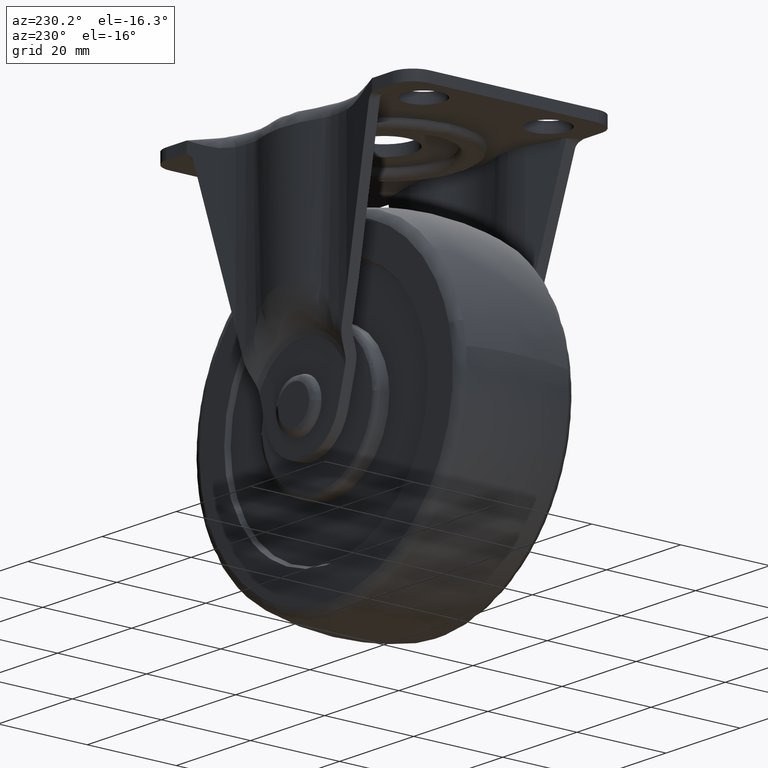
[diagram: clean part render]
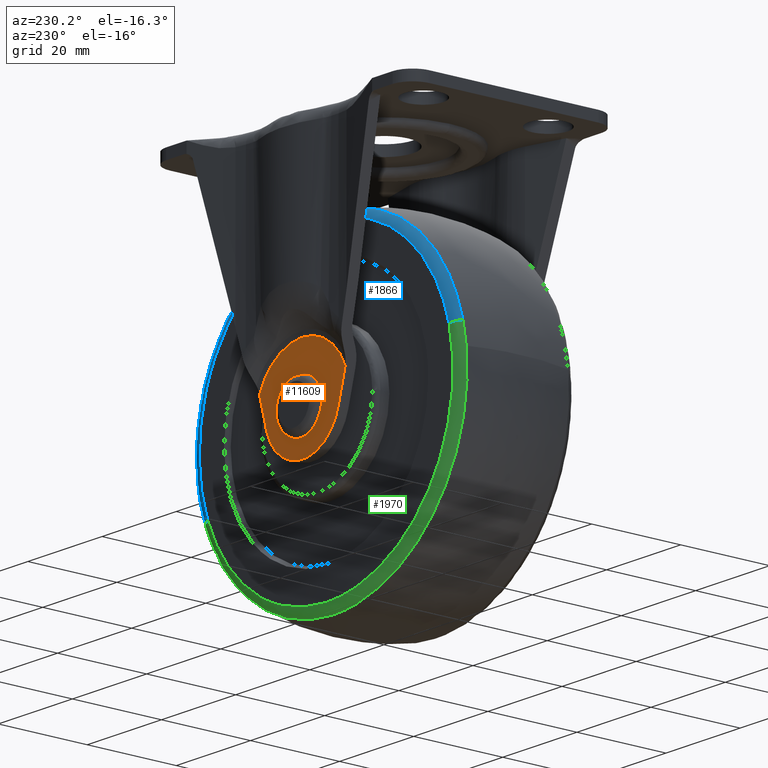
[diagram: same view with three faces highlighted in distinct colors, each labeled with its STEP entity id]
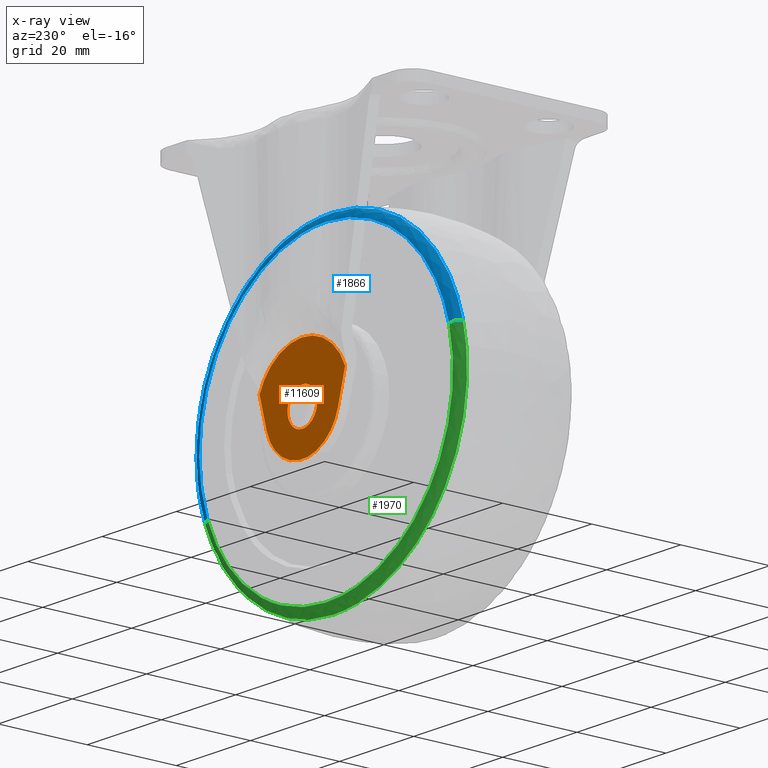
[diagram: x-ray of the same camera — body ghosted, the three highlighted faces saturated]
A machine part, auxiliary view with three faces highlighted in distinct colors.
The next image is the same camera in x-ray (body ghosted, the three faces saturated) — at least one of them is partly hidden behind the body in this view.
Their STEP definitions:

[orange] entity #11609 — the highlighted face is a freeform B-spline surface patch.
#3518=CARTESIAN_POINT('',(3.054222908621160,18.347460000000002,-2.582968298141589));
#3519=VERTEX_POINT('',#3518);
#3525=CARTESIAN_POINT('',(0.0,18.347460000000002,-4.0));
#3526=VERTEX_POINT('',#3525);
#3527=CARTESIAN_POINT('',(3.054222908621160,18.347460000000002,-2.582968298141589));
#3528=CARTESIAN_POINT('',(2.855573381587088,18.347459999999991,-2.817960619126406));
#3529=CARTESIAN_POINT('',(2.403663494263801,18.347460000000009,-3.241688310997173));
#3530=CARTESIAN_POINT('',(1.393268081154602,18.347460000000002,-3.823996962824381));
#3531=CARTESIAN_POINT('',(0.543126040313465,18.347460000000002,-4.000669092931161));
#3532=CARTESIAN_POINT('',(0.0,18.347460000000002,-4.0));
#3533=B_SPLINE_CURVE_WITH_KNOTS('',3,(#3527,#3528,#3529,#3530,#3531,#3532),.UNSPECIFIED.,.F.,.U.,(4,1,1,4),(0.000000066988236,0.923109344315790,1.846210104675439,3.475233432682463),.UNSPECIFIED.);
#3534=EDGE_CURVE('',#3519,#3526,#3533,.T.);
#3536=CARTESIAN_POINT('',(-3.999999999999747,18.347460000000002,0.000001422114586));
#3537=VERTEX_POINT('',#3536);
#3538=CARTESIAN_POINT('',(0.0,18.347460000000002,-4.0));
#3539=CARTESIAN_POINT('',(-0.327248020748826,18.347460000000019,-4.000079756295479));
#3540=CARTESIAN_POINT('',(-0.883528809425609,18.347459999999980,-3.931330235631599));
#3541=CARTESIAN_POINT('',(-1.722163222779666,18.347460000000009,-3.642855843347853));
#3542=CARTESIAN_POINT('',(-2.429184362176218,18.347459999999991,-3.219106240209698));
#3543=CARTESIAN_POINT('',(-3.143711698409065,18.347460000000030,-2.538884022940628));
#3544=CARTESIAN_POINT('',(-3.656998525410170,18.347459999999931,-1.728435101886006));
#3545=CARTESIAN_POINT('',(-3.945190760334135,18.347460000000119,-0.818097519559816));
#3546=CARTESIAN_POINT('',(-4.000030877551748,18.347459999999881,-0.261786399144490));
#3547=CARTESIAN_POINT('',(-3.999999999999747,18.347460000000002,0.000001422114586));
#3548=B_SPLINE_CURVE_WITH_KNOTS('',3,(#3538,#3539,#3540,#3541,#3542,#3543,#3544,#3545,#3546,#3547),.UNSPECIFIED.,.F.,.U.,(4,1,1,1,1,1,1,4),(0.000000107845151,0.981747113912695,1.669014168319499,2.650820471513051,3.436177981696357,4.614329718677588,5.497959722432118,6.283343778887010),.UNSPECIFIED.);
#3549=EDGE_CURVE('',#3526,#3537,#3548,.T.);
#3551=CARTESIAN_POINT('',(0.0,18.347460000000002,4.0));
#3552=VERTEX_POINT('',#3551);
#3553=CARTESIAN_POINT('',(-3.999999999999747,18.347460000000002,0.000001422114586));
#3554=CARTESIAN_POINT('',(-4.000130491248617,18.347459999999970,0.359986476294188));
#3555=CARTESIAN_POINT('',(-3.924362170752616,18.347459999999991,0.916230354259882));
#3556=CARTESIAN_POINT('',(-3.647956552923771,18.347460000000002,1.688617613086846));
#3557=CARTESIAN_POINT('',(-3.226722646549717,18.347460000000009,2.432646600813422));
#3558=CARTESIAN_POINT('',(-2.587996904146380,18.347460000000002,3.103422995870218));
#3559=CARTESIAN_POINT('',(-1.865595683062676,18.347460000000041,3.560707503597258));
#3560=CARTESIAN_POINT('',(-1.047072642177110,18.347459999999948,3.899851530823786));
#3561=CARTESIAN_POINT('',(-0.425455700045645,18.347460000000030,4.000228431988049));
#3562=CARTESIAN_POINT('',(0.0,18.347460000000002,4.0));
#3563=B_SPLINE_CURVE_WITH_KNOTS('',3,(#3553,#3554,#3555,#3556,#3557,#3558,#3559,#3560,#3561,#3562),.UNSPECIFIED.,.F.,.U.,(4,1,1,1,1,1,1,4),(0.000000109794394,1.079929653352755,1.669013743901721,2.454466620509347,3.632522488957104,4.417966446222109,5.007046871232914,6.283342175792430),.UNSPECIFIED.);
#3564=EDGE_CURVE('',#3537,#3552,#3563,.T.);
#3566=CARTESIAN_POINT('',(2.753418186849582,18.347460000000002,2.901497104598689));
#3567=VERTEX_POINT('',#3566);
#3568=CARTESIAN_POINT('',(0.0,18.347460000000002,4.0));
#3569=CARTESIAN_POINT('',(0.347989062071285,18.347459999999970,4.000104413449996));
#3570=CARTESIAN_POINT('',(1.012245961320540,18.347460000000019,3.912760733812372));
#3571=CARTESIAN_POINT('',(1.959121792051336,18.347459999999980,3.535022275927014));
#3572=CARTESIAN_POINT('',(2.501062086618238,18.347460000000009,3.141104963670837));
#3573=CARTESIAN_POINT('',(2.753418186849582,18.347460000000002,2.901497104598689));
#3574=B_SPLINE_CURVE_WITH_KNOTS('',3,(#3568,#3569,#3570,#3571,#3572,#3573),.UNSPECIFIED.,.F.,.U.,(4,1,1,4),(0.000000036924167,1.043959768573300,1.992984421070324,3.036944152682459),.UNSPECIFIED.);
#3575=EDGE_CURVE('',#3552,#3567,#3574,.T.);
#3661=CARTESIAN_POINT('',(3.999999999999748,18.347460000000002,-0.000001422114585));
#3662=VERTEX_POINT('',#3661);
#3663=CARTESIAN_POINT('',(2.753418186849582,18.347460000000002,2.901497104598689));
#3664=CARTESIAN_POINT('',(3.072532311464276,18.347459999999959,2.599074493966558));
#3665=CARTESIAN_POINT('',(3.505831621481610,18.347460000000069,2.024352739136605));
#3666=CARTESIAN_POINT('',(3.909716678097097,18.347459999999920,1.014407979260344));
#3667=CARTESIAN_POINT('',(4.000123851585312,18.347460000000058,0.371983778025252));
#3668=CARTESIAN_POINT('',(3.999999999999748,18.347460000000002,-0.000001422114585));
#3669=B_SPLINE_CURVE_WITH_KNOTS('',3,(#3663,#3664,#3665,#3666,#3667,#3668),.UNSPECIFIED.,.F.,.U.,(4,1,1,4),(0.000000028428660,1.318851063959982,2.130449900133360,3.246400491814488),.UNSPECIFIED.);
#3670=EDGE_CURVE('',#3567,#3662,#3669,.T.);
#3672=CARTESIAN_POINT('',(3.999999999999748,18.347460000000002,-0.000001422114585));
#3673=CARTESIAN_POINT('',(4.000122717219903,18.347460000000002,-0.380263197112269));
#3674=CARTESIAN_POINT('',(3.903360086378589,18.347460000000041,-1.052941612995693));
#3675=CARTESIAN_POINT('',(3.541044577259863,18.347459999999959,-1.922086735217818));
#3676=CARTESIAN_POINT('',(3.224234453071376,18.347460000000019,-2.381980968977090));
#3677=CARTESIAN_POINT('',(3.054222908621160,18.347460000000002,-2.582968298141589));
#3678=B_SPLINE_CURVE_WITH_KNOTS('',3,(#3672,#3673,#3674,#3675,#3676,#3677),.UNSPECIFIED.,.F.,.U.,(4,1,1,4),(0.000000040107236,1.140780112086952,2.018273124390241,2.808033704546654),.UNSPECIFIED.);
#3679=EDGE_CURVE('',#3662,#3519,#3678,.T.);
#8613=CARTESIAN_POINT('',(11.543011432186020,18.347460000000002,4.740753327666980));
#8614=VERTEX_POINT('',#8613);
#8628=CARTESIAN_POINT('',(-11.543015118705499,18.347460000000002,4.740744351544330));
#8629=VERTEX_POINT('',#8628);
#8630=CARTESIAN_POINT('',(-11.543015118705499,18.347460000000002,4.740744351544330));
#8631=CARTESIAN_POINT('',(-11.207772397077640,18.347460000000002,5.557374153471325));
#8632=CARTESIAN_POINT('',(-10.491426718236310,18.347460000000009,6.881281207371682));
#8633=CARTESIAN_POINT('',(-9.095229424221740,18.347459999999970,8.622927449804163));
#8634=CARTESIAN_POINT('',(-7.378184270968676,18.347460000000058,10.170901064502949));
#8635=CARTESIAN_POINT('',(-5.345304942579762,18.347459999999970,11.363493057944670));
#8636=CARTESIAN_POINT('',(-3.128692169454704,18.347460000000019,12.139491341477569));
#8637=CARTESIAN_POINT('',(-1.230277266166897,18.347460000000090,12.466726834071819));
#8638=CARTESIAN_POINT('',(0.692440586541409,18.347459999999739,12.502206472057610));
#8639=CARTESIAN_POINT('',(2.487882106880826,18.347459999999899,12.277400332568330));
#8640=CARTESIAN_POINT('',(4.487057866896862,18.347460000000339,11.709461714390811));
#8641=CARTESIAN_POINT('',(6.538211292427304,18.347459999999622,10.724998187928231));
#8642=CARTESIAN_POINT('',(8.633213995976417,18.347460000000179,9.145879285219714));
#8643=CARTESIAN_POINT('',(10.367018323606681,18.347459999999899,7.120731007347475));
#8644=CARTESIAN_POINT('',(11.222302799968000,18.347460000000030,5.521843947027944));
#8645=CARTESIAN_POINT('',(11.543011432186020,18.347460000000002,4.740753327666980));
#8646=B_SPLINE_CURVE_WITH_KNOTS('',3,(#8630,#8631,#8632,#8633,#8634,#8635,#8636,#8637,#8638,#8639,#8640,#8641,#8642,#8643,#8644,#8645),.UNSPECIFIED.,.F.,.U.,(4,1,1,1,1,1,1,1,1,1,1,1,1,4),(0.000000290351799,2.648262620212901,4.490603376827519,6.678384513500205,9.557024580719919,11.514519474122590,13.702227536854361,15.314162406960641,17.271635767071739,19.113969026315250,21.532040451497402,24.065235276942371,26.943907805709131,29.477028972724032),.UNSPECIFIED.);
#8647=EDGE_CURVE('',#8629,#8614,#8646,.T.);
#11287=CARTESIAN_POINT('',(9.640058973473630,18.347460000000002,-2.158808565495185));
#11288=VERTEX_POINT('',#11287);
#11318=CARTESIAN_POINT('',(-9.640059844989930,18.347460000000002,-2.158805405631030));
#11319=VERTEX_POINT('',#11318);
#11325=CARTESIAN_POINT('',(9.640058973473630,18.347460000000002,-2.158808565495185));
#11326=CARTESIAN_POINT('',(9.388057782726710,18.347459999999920,-3.073917974172642));
#11327=CARTESIAN_POINT('',(8.812313105216399,18.347460000000289,-4.391754161899885));
#11328=CARTESIAN_POINT('',(7.718482064439905,18.347459999999721,-5.907412689619612));
#11329=CARTESIAN_POINT('',(6.639305251785848,18.347460000000108,-7.037697867597228));
#11330=CARTESIAN_POINT('',(5.442543129689221,18.347460000000229,-7.939454787010933));
#11331=CARTESIAN_POINT('',(3.912773352418800,18.347459999999820,-8.751776469592034));
#11332=CARTESIAN_POINT('',(2.427654686689237,18.347460000000069,-9.252846939658403));
#11333=CARTESIAN_POINT('',(0.613821260773531,18.347460000000002,-9.531684196191403));
#11334=CARTESIAN_POINT('',(-1.362006168073708,18.347460000000019,-9.491619349530605));
#11335=CARTESIAN_POINT('',(-3.549207891042693,18.347459999999980,-8.947054902605695));
#11336=CARTESIAN_POINT('',(-5.336093385659041,18.347460000000009,-8.021162507330725));
#11337=CARTESIAN_POINT('',(-6.816855870948007,18.347459999999991,-6.881581661113455));
#11338=CARTESIAN_POINT('',(-7.905022682093350,18.347460000000069,-5.706627736419520));
#11339=CARTESIAN_POINT('',(-8.957168999884887,18.347459999999838,-4.080174396948333));
#11340=CARTESIAN_POINT('',(-9.432926795409768,18.347460000000229,-2.910439643179091));
#11341=CARTESIAN_POINT('',(-9.640059844989930,18.347460000000002,-2.158805405631030));
#11342=B_SPLINE_CURVE_WITH_KNOTS('',3,(#11325,#11326,#11327,#11328,#11329,#11330,#11331,#11332,#11333,#11334,#11335,#11336,#11337,#11338,#11339,#11340,#11341),.UNSPECIFIED.,.F.,.U.,(4,1,1,1,1,1,1,1,1,1,1,1,1,1,4),(0.000000358827172,2.847378509673689,4.271146954375304,5.593174939488023,7.525384465700988,8.745704161766692,10.779647679800039,12.203375992767880,14.237146138266180,16.677832434178750,18.915094813149519,20.237141343691238,22.271027167602359,23.694774223272411,26.033690921189461),.UNSPECIFIED.);
#11343=EDGE_CURVE('',#11288,#11319,#11342,.T.);
#11470=CARTESIAN_POINT('',(-9.640059844989930,18.347460000000002,-2.158805405631030));
#11471=CARTESIAN_POINT('',(-11.543015118705499,18.347460000000002,4.740744351544330));
#11472=QUASI_UNIFORM_CURVE('',1,(#11470,#11471),.UNSPECIFIED.,.F.,.U.);
#11473=EDGE_CURVE('',#11319,#8629,#11472,.T.);
#11538=CARTESIAN_POINT('',(11.543011432186020,18.347460000000002,4.740753327666980));
#11539=CARTESIAN_POINT('',(9.640058973473630,18.347460000000002,-2.158808565495185));
#11540=QUASI_UNIFORM_CURVE('',1,(#11538,#11539),.UNSPECIFIED.,.F.,.U.);
#11541=EDGE_CURVE('',#8614,#11288,#11540,.T.);
#11590=CARTESIAN_POINT('',(12.696158630372951,18.347460000000002,-10.597807485644029));
#11591=CARTESIAN_POINT('',(12.696158630372951,18.347460000000002,13.576460338744230));
#11592=CARTESIAN_POINT('',(-12.696162729702760,18.347460000000002,-10.597807485644029));
#11593=CARTESIAN_POINT('',(-12.696162729702760,18.347460000000002,13.576460338744230));
#11594=B_SPLINE_SURFACE_WITH_KNOTS('',1,1,((#11590,#11592),(#11591,#11593)),.UNSPECIFIED.,.F.,.F.,.U.,(2,2),(2,2),(0.0,24.174267824388249),(0.0,25.392321360075709),.UNSPECIFIED.);
#11595=ORIENTED_EDGE('',*,*,#11473,.T.);
#11596=ORIENTED_EDGE('',*,*,#8647,.T.);
#11597=ORIENTED_EDGE('',*,*,#11541,.T.);
#11598=ORIENTED_EDGE('',*,*,#11343,.T.);
#11599=EDGE_LOOP('',(#11595,#11596,#11597,#11598));
#11600=FACE_OUTER_BOUND('',#11599,.T.);
#11601=ORIENTED_EDGE('',*,*,#3549,.F.);
#11602=ORIENTED_EDGE('',*,*,#3534,.F.);
#11603=ORIENTED_EDGE('',*,*,#3679,.F.);
#11604=ORIENTED_EDGE('',*,*,#3670,.F.);
#11605=ORIENTED_EDGE('',*,*,#3575,.F.);
#11606=ORIENTED_EDGE('',*,*,#3564,.F.);
#11607=EDGE_LOOP('',(#11601,#11602,#11603,#11604,#11605,#11606));
#11608=FACE_BOUND('',#11607,.T.);
#11609=ADVANCED_FACE('',(#11600,#11608),#11594,.F.);

[blue] entity #1866 — the highlighted face is a freeform B-spline surface patch.
#1732=CARTESIAN_POINT('',(31.828429364287121,12.996228425762105,-12.237166238187466));
#1733=CARTESIAN_POINT('',(32.537276672212599,12.996228425762109,-10.393479878843456));
#1734=CARTESIAN_POINT('',(33.028503344421480,12.996228425762109,-8.480278307106969));
#1735=CARTESIAN_POINT('',(41.508781651528444,12.996228425762107,24.548225037314516));
#1736=CARTESIAN_POINT('',(8.480278307106973,12.996228425762109,33.028503344421480));
#1737=CARTESIAN_POINT('',(-24.548225037314516,12.996228425762107,41.508781651528459));
#1738=CARTESIAN_POINT('',(-33.028503344421480,12.996228425762109,8.480278307106973));
#1739=CARTESIAN_POINT('',(33.499679076429381,13.106345424087957,-12.879716340768240));
#1740=CARTESIAN_POINT('',(34.245746595436110,13.106345424087953,-10.939221550757793));
#1741=CARTESIAN_POINT('',(34.762766636998194,13.106345424087953,-8.925561438028318));
#1742=CARTESIAN_POINT('',(43.688328075026504,13.106345424087955,25.837205198969873));
#1743=CARTESIAN_POINT('',(8.925561438028318,13.106345424087953,34.762766636998194));
#1744=CARTESIAN_POINT('',(-25.837205198969873,13.106345424087955,43.688328075026504));
#1745=CARTESIAN_POINT('',(-34.762766636998194,13.106345424087953,8.925561438028321));
#1746=CARTESIAN_POINT('',(33.782901491840356,11.338295727053072,-12.988607663682656));
#1747=CARTESIAN_POINT('',(34.535276624848720,11.338295727053076,-11.031706996461702));
#1748=CARTESIAN_POINT('',(35.056667802762682,11.338295727053067,-9.001022431657841));
#1749=CARTESIAN_POINT('',(44.057690234420519,11.338295727053072,26.055645371104841));
#1750=CARTESIAN_POINT('',(9.001022431657843,11.338295727053067,35.056667802762682));
#1751=CARTESIAN_POINT('',(-26.055645371104841,11.338295727053072,44.057690234420519));
#1752=CARTESIAN_POINT('',(-35.056667802762682,11.338295727053067,9.001022431657843));
#1760=(BOUNDED_SURFACE()B_SPLINE_SURFACE(2,2,((#1732,#1739,#1746),(#1733,#1740,#1747),(#1734,#1741,#1748),(#1735,#1742,#1749),(#1736,#1743,#1750),(#1737,#1744,#1751),(#1738,#1745,#1752)),.UNSPECIFIED.,.F.,.F.,.U.)B_SPLINE_SURFACE_WITH_KNOTS((3,2,2,3),(3,3),(0.0,4.797418411557006,64.765205745758180,124.732993079959300),(0.0,3.062142344073365),.UNSPECIFIED.)GEOMETRIC_REPRESENTATION_ITEM()RATIONAL_B_SPLINE_SURFACE(((0.875006939837827,0.652294520803206,0.877479908507616),(0.893005156720717,0.665711715253244,0.895528992445883),(0.914431601498662,0.681684562887500,0.917015993231133),(0.646600786350979,0.482023777047939,0.648428227270251),(0.914431601498662,0.681684562887500,0.917015993231133),(0.646600786350979,0.482023777047939,0.648428227270251),(0.914431601498662,0.681684562887500,0.917015993231133)))REPRESENTATION_ITEM('')SURFACE());
#1761=CARTESIAN_POINT('',(31.943018117321522,12.999999999999821,-12.281226634318060));
#1762=VERTEX_POINT('',#1761);
#1763=CARTESIAN_POINT('',(0.0,12.999999999999760,34.222579301868301));
#1764=VERTEX_POINT('',#1763);
#1765=CARTESIAN_POINT('',(31.943018117321522,12.999999999999821,-12.281226634318060));
#1766=CARTESIAN_POINT('',(32.811011859398803,12.999999999999821,-10.024541366463071));
#1767=CARTESIAN_POINT('',(33.863968014566929,12.999999999999821,-6.081384925064252));
#1768=CARTESIAN_POINT('',(34.309753872191557,12.999999999999810,-0.732249348964015));
#1769=CARTESIAN_POINT('',(34.085623665874898,12.999999999999780,4.192672538384989));
#1770=CARTESIAN_POINT('',(33.041815308974890,12.999999999999810,9.641079240305830));
#1771=CARTESIAN_POINT('',(30.913582777812980,12.999999999999650,15.051132428010771));
#1772=CARTESIAN_POINT('',(28.192942252216479,13.000000000000020,19.575885764202550));
#1773=CARTESIAN_POINT('',(25.655369201086089,12.999999999999661,22.754019911574719));
#1774=CARTESIAN_POINT('',(22.848931761840792,12.999999999999771,25.570889208953080));
#1775=CARTESIAN_POINT('',(19.410554079838199,12.999999999999741,28.337282504982038));
#1776=CARTESIAN_POINT('',(15.298281223828090,12.999999999999760,30.746066416512200));
#1777=CARTESIAN_POINT('',(11.050613141070389,12.999999999999750,32.472380446216171));
#1778=CARTESIAN_POINT('',(6.130813885541445,12.999999999999771,33.827395440193179));
#1779=CARTESIAN_POINT('',(2.417870413887570,12.999999999999760,34.222949117589870));
#1780=CARTESIAN_POINT('',(0.0,12.999999999999760,34.222579301868301));
#1781=B_SPLINE_CURVE_WITH_KNOTS('',3,(#1765,#1766,#1767,#1768,#1769,#1770,#1771,#1772,#1773,#1774,#1775,#1776,#1777,#1778,#1779,#1780),.UNSPECIFIED.,.F.,.U.,(4,1,1,1,1,1,1,1,1,1,1,1,1,4),(0.000000080861682,7.253518884902221,12.175597444633970,16.061449853299301,22.019753248665161,28.755185256075539,33.418149217654523,37.822077337143483,40.930786617842841,45.334722118109852,51.033971310638542,55.178863880577133,59.064727225314073,66.318249522696405),.UNSPECIFIED.);
#1782=EDGE_CURVE('',#1762,#1764,#1781,.T.);
#1783=ORIENTED_EDGE('',*,*,#1782,.T.);
#1784=CARTESIAN_POINT('',(-33.147414047887878,12.999999999999821,8.510809386734717));
#1785=VERTEX_POINT('',#1784);
#1786=CARTESIAN_POINT('',(0.0,12.999999999999760,34.222579301868301));
#1787=CARTESIAN_POINT('',(-1.234718972937173,12.999999999999760,34.222591342193461));
#1788=CARTESIAN_POINT('',(-4.115743315707733,12.999999999999750,34.066540325142569));
#1789=CARTESIAN_POINT('',(-8.813216719447629,12.999999999999771,33.209965784831518));
#1790=CARTESIAN_POINT('',(-13.047654170699699,12.999999999999780,31.735693117455121));
#1791=CARTESIAN_POINT('',(-17.004852859931042,12.999999999999799,29.781308967861062));
#1792=CARTESIAN_POINT('',(-20.826891644104322,12.999999999999741,27.334243769224049));
#1793=CARTESIAN_POINT('',(-24.487974069455689,12.999999999999810,24.079228378025508));
#1794=CARTESIAN_POINT('',(-27.522025065468291,12.999999999999790,20.474970730433949));
#1795=CARTESIAN_POINT('',(-29.947798828818701,12.999999999999821,16.782260051948739));
#1796=CARTESIAN_POINT('',(-31.875064378849530,12.999999999999730,12.736878890885141));
#1797=CARTESIAN_POINT('',(-32.811134014862681,12.999999999999931,9.820634895566494));
#1798=CARTESIAN_POINT('',(-33.147414047887878,12.999999999999821,8.510809386734717));
#1799=B_SPLINE_CURVE_WITH_KNOTS('',3,(#1786,#1787,#1788,#1789,#1790,#1791,#1792,#1793,#1794,#1795,#1796,#1797,#1798),.UNSPECIFIED.,.F.,.U.,(4,1,1,1,1,1,1,1,1,1,4),(0.000000059839756,3.704166364371027,8.643072464077548,14.287553928850681,17.109783572962989,21.872329393678282,27.869490900611201,31.750082621684861,35.983436730090723,41.098759241110898,45.155679547481768),.UNSPECIFIED.);
#1800=EDGE_CURVE('',#1764,#1785,#1799,.T.);
#1801=ORIENTED_EDGE('',*,*,#1800,.T.);
#1802=CARTESIAN_POINT('',(-35.033026644352752,11.458343053248250,8.994952413896838));
#1803=VERTEX_POINT('',#1802);
#1804=CARTESIAN_POINT('',(-33.147414047887878,12.999999999999821,8.510809386734717));
#1805=CARTESIAN_POINT('',(-33.336638442839657,13.000077480818851,8.559393953664854));
#1806=CARTESIAN_POINT('',(-33.715044618227743,12.942316527758820,8.656552145974791));
#1807=CARTESIAN_POINT('',(-34.221907525738118,12.696271602504360,8.786692421274065));
#1808=CARTESIAN_POINT('',(-34.733814779506851,12.230853237536570,8.918127864549504));
#1809=CARTESIAN_POINT('',(-34.962391015805679,11.771045758682449,8.976816267015977));
#1810=CARTESIAN_POINT('',(-35.033026644352752,11.458343053248250,8.994952413896838));
#1811=B_SPLINE_CURVE_WITH_KNOTS('',3,(#1804,#1805,#1806,#1807,#1808,#1809,#1810),.UNSPECIFIED.,.F.,.U.,(4,1,1,1,4),(0.000000225442051,0.586072653864226,1.172182689407110,1.716335190389575,2.679190317100843),.UNSPECIFIED.);
#1812=EDGE_CURVE('',#1785,#1803,#1811,.T.);
#1813=ORIENTED_EDGE('',*,*,#1812,.T.);
#1814=CARTESIAN_POINT('',(0.0,11.458330712476220,36.169357787185191));
#1815=VERTEX_POINT('',#1814);
#1816=CARTESIAN_POINT('',(0.0,11.458330712476220,36.169357787185191));
#1817=CARTESIAN_POINT('',(-1.677809546960960,11.458331061580820,36.169427508947869));
#1818=CARTESIAN_POINT('',(-5.033408185752237,11.458331803301251,35.935458703686962));
#1819=CARTESIAN_POINT('',(-9.725752756103267,11.458332964431680,34.941525226016509));
#1820=CARTESIAN_POINT('',(-14.483424526617039,11.458334264843121,33.271406223215173));
#1821=CARTESIAN_POINT('',(-19.080640699729351,11.458335662771431,30.897040048661310));
#1822=CARTESIAN_POINT('',(-23.758617655831198,11.458337272012839,27.476240529102199));
#1823=CARTESIAN_POINT('',(-28.187125556806912,11.458339026129551,22.996765045969848));
#1824=CARTESIAN_POINT('',(-31.648066935077509,11.458340698670909,17.873022957422680));
#1825=CARTESIAN_POINT('',(-33.851679530021862,11.458342064820060,12.990121713626049));
#1826=CARTESIAN_POINT('',(-34.723961804688727,11.458342765182490,10.198730289506990));
#1827=CARTESIAN_POINT('',(-35.033026644352752,11.458343053248250,8.994952413896838));
#1828=B_SPLINE_CURVE_WITH_KNOTS('',3,(#1816,#1817,#1818,#1819,#1820,#1821,#1822,#1823,#1824,#1825,#1826,#1827),.UNSPECIFIED.,.F.,.U.,(4,1,1,1,1,1,1,1,1,4),(0.000000059164343,5.033424796128323,10.066861892009170,14.354614490978580,20.133736255185930,25.539960770085081,31.691976477638519,38.962493466693630,43.995925213602092,47.724393048889262),.UNSPECIFIED.);
#1829=EDGE_CURVE('',#1815,#1803,#1828,.T.);
#1830=ORIENTED_EDGE('',*,*,#1829,.F.);
#1831=CARTESIAN_POINT('',(33.760118683740302,11.458332594590310,-12.979852662452490));
#1832=VERTEX_POINT('',#1831);
#1833=CARTESIAN_POINT('',(33.760118683740302,11.458332594590310,-12.979852662452490));
#1834=CARTESIAN_POINT('',(34.349704062558367,11.458332534010870,-11.446564821292160));
#1835=CARTESIAN_POINT('',(35.292443538274810,11.458332413389350,-8.386874025685494));
#1836=CARTESIAN_POINT('',(36.080424646011672,11.458332229249050,-3.697056894209578));
#1837=CARTESIAN_POINT('',(36.270389249708451,11.458332032637680,1.329300424835760));
#1838=CARTESIAN_POINT('',(35.737365084938332,11.458331837598990,6.336397870439925));
#1839=CARTESIAN_POINT('',(34.448246096155948,11.458331641705140,11.387338684236200));
#1840=CARTESIAN_POINT('',(32.725208133908019,11.458331478061741,15.625490059642891));
#1841=CARTESIAN_POINT('',(30.534968273291000,11.458331327925430,19.531533216179952));
#1842=CARTESIAN_POINT('',(28.129048229470872,11.458331200243199,22.869159170207670));
#1843=CARTESIAN_POINT('',(25.040759702529439,11.458331072097669,26.238455625490431));
#1844=CARTESIAN_POINT('',(21.122442919468991,11.458330947528401,29.540336936051151));
#1845=CARTESIAN_POINT('',(16.893545294225770,11.458330852150500,32.104134002539183));
#1846=CARTESIAN_POINT('',(12.624348787211380,11.458330783991620,33.972489685616367));
#1847=CARTESIAN_POINT('',(8.435296987841387,11.458330737608581,35.281210476849523));
#1848=CARTESIAN_POINT('',(4.106850052291104,11.458330713433080,36.025611310242510));
#1849=CARTESIAN_POINT('',(1.186410411426950,11.458330711130230,36.169361569726149));
#1850=CARTESIAN_POINT('',(0.0,11.458330712476220,36.169357787185191));
#1851=B_SPLINE_CURVE_WITH_KNOTS('',3,(#1833,#1834,#1835,#1836,#1837,#1838,#1839,#1840,#1841,#1842,#1843,#1844,#1845,#1846,#1847,#1848,#1849,#1850),.UNSPECIFIED.,.F.,.U.,(4,1,1,1,1,1,1,1,1,1,1,1,1,1,1,4),(0.000000066660263,4.928208017658392,9.582691379218083,14.237190374039960,19.986844355767399,24.641312746667332,29.843385881566029,33.676514948875202,38.057099568057637,42.163975067414647,47.366033737227291,53.389489650034847,56.948801303430407,61.329501626128817,66.531567389733695,70.090812000095454),.UNSPECIFIED.);
#1852=EDGE_CURVE('',#1832,#1815,#1851,.T.);
#1853=ORIENTED_EDGE('',*,*,#1852,.F.);
#1854=CARTESIAN_POINT('',(31.943018117321522,12.999999999999821,-12.281226634318060));
#1855=CARTESIAN_POINT('',(32.164446961002078,13.000159780960370,-12.366360036634820));
#1856=CARTESIAN_POINT('',(32.607205966320592,12.914664725682780,-12.536588900692600));
#1857=CARTESIAN_POINT('',(33.131166119015283,12.582924496954270,-12.738037410004770));
#1858=CARTESIAN_POINT('',(33.544259323895041,12.091836616428459,-12.896860576047951));
#1859=CARTESIAN_POINT('',(33.706575443376771,11.702899359050210,-12.959266734494429));
#1860=CARTESIAN_POINT('',(33.760118683740302,11.458332594590310,-12.979852662452490));
#1861=B_SPLINE_CURVE_WITH_KNOTS('',3,(#1854,#1855,#1856,#1857,#1858,#1859,#1860),.UNSPECIFIED.,.F.,.U.,(4,1,1,1,4),(0.000000225443632,0.711667487940862,1.423296525265465,1.925669793139528,2.679199859504206),.UNSPECIFIED.);
#1862=EDGE_CURVE('',#1762,#1832,#1861,.T.);
#1863=ORIENTED_EDGE('',*,*,#1862,.F.);
#1864=EDGE_LOOP('',(#1783,#1801,#1813,#1830,#1853,#1863));
#1865=FACE_OUTER_BOUND('',#1864,.T.);
#1866=ADVANCED_FACE('',(#1865),#1760,.T.);

[green] entity #1970 — the highlighted face is a freeform B-spline surface patch.
#1761=CARTESIAN_POINT('',(31.943018117321522,12.999999999999821,-12.281226634318060));
#1762=VERTEX_POINT('',#1761);
#1784=CARTESIAN_POINT('',(-33.147414047887878,12.999999999999821,8.510809386734717));
#1785=VERTEX_POINT('',#1784);
#1802=CARTESIAN_POINT('',(-35.033026644352752,11.458343053248250,8.994952413896838));
#1803=VERTEX_POINT('',#1802);
#1804=CARTESIAN_POINT('',(-33.147414047887878,12.999999999999821,8.510809386734717));
#1805=CARTESIAN_POINT('',(-33.336638442839657,13.000077480818851,8.559393953664854));
#1806=CARTESIAN_POINT('',(-33.715044618227743,12.942316527758820,8.656552145974791));
#1807=CARTESIAN_POINT('',(-34.221907525738118,12.696271602504360,8.786692421274065));
#1808=CARTESIAN_POINT('',(-34.733814779506851,12.230853237536570,8.918127864549504));
#1809=CARTESIAN_POINT('',(-34.962391015805679,11.771045758682449,8.976816267015977));
#1810=CARTESIAN_POINT('',(-35.033026644352752,11.458343053248250,8.994952413896838));
#1811=B_SPLINE_CURVE_WITH_KNOTS('',3,(#1804,#1805,#1806,#1807,#1808,#1809,#1810),.UNSPECIFIED.,.F.,.U.,(4,1,1,1,4),(0.000000225442051,0.586072653864226,1.172182689407110,1.716335190389575,2.679190317100843),.UNSPECIFIED.);
#1812=EDGE_CURVE('',#1785,#1803,#1811,.T.);
#1831=CARTESIAN_POINT('',(33.760118683740302,11.458332594590310,-12.979852662452490));
#1832=VERTEX_POINT('',#1831);
#1854=CARTESIAN_POINT('',(31.943018117321522,12.999999999999821,-12.281226634318060));
#1855=CARTESIAN_POINT('',(32.164446961002078,13.000159780960370,-12.366360036634820));
#1856=CARTESIAN_POINT('',(32.607205966320592,12.914664725682780,-12.536588900692600));
#1857=CARTESIAN_POINT('',(33.131166119015283,12.582924496954270,-12.738037410004770));
#1858=CARTESIAN_POINT('',(33.544259323895041,12.091836616428459,-12.896860576047951));
#1859=CARTESIAN_POINT('',(33.706575443376771,11.702899359050210,-12.959266734494429));
#1860=CARTESIAN_POINT('',(33.760118683740302,11.458332594590310,-12.979852662452490));
#1861=B_SPLINE_CURVE_WITH_KNOTS('',3,(#1854,#1855,#1856,#1857,#1858,#1859,#1860),.UNSPECIFIED.,.F.,.U.,(4,1,1,1,4),(0.000000225443632,0.711667487940862,1.423296525265465,1.925669793139528,2.679199859504206),.UNSPECIFIED.);
#1862=EDGE_CURVE('',#1762,#1832,#1861,.T.);
#1867=CARTESIAN_POINT('',(-33.028503447913927,12.996228432333348,8.480278333679307));
#1868=CARTESIAN_POINT('',(-41.508781781593228,12.996228432333355,-24.548225114234612));
#1869=CARTESIAN_POINT('',(-8.480278333679308,12.996228432333348,-33.028503447913927));
#1870=CARTESIAN_POINT('',(20.931329877422119,12.996228432333353,-40.580120924757878));
#1871=CARTESIAN_POINT('',(31.828428084188733,12.996228432333361,-12.237169865420597));
#1872=CARTESIAN_POINT('',(-34.762764695568805,13.106345204616170,8.925560939553972));
#1873=CARTESIAN_POINT('',(-43.688325635122780,13.106345204616170,-25.837203756014830));
#1874=CARTESIAN_POINT('',(-8.925560939553973,13.106345204616170,-34.762764695568805));
#1875=CARTESIAN_POINT('',(22.030392519649919,13.106345204616167,-42.710902637466738));
#1876=CARTESIAN_POINT('',(33.499675753258224,13.106345204616172,-12.879719398796739));
#1877=CARTESIAN_POINT('',(-35.056667435138692,11.338297938596854,9.001022337268037));
#1878=CARTESIAN_POINT('',(-44.057689772406725,11.338297938596856,-26.055645097870652));
#1879=CARTESIAN_POINT('',(-9.001022337268038,11.338297938596854,-35.056667435138692));
#1880=CARTESIAN_POINT('',(22.216649072373134,11.338297938596858,-43.072003125433810));
#1881=CARTESIAN_POINT('',(33.782899673012786,11.338297938596858,-12.988611336746670));
#1889=(BOUNDED_SURFACE()B_SPLINE_SURFACE(2,2,((#1867,#1872,#1877),(#1868,#1873,#1878),(#1869,#1874,#1879),(#1870,#1875,#1880),(#1871,#1876,#1881)),.UNSPECIFIED.,.F.,.F.,.U.)B_SPLINE_SURFACE_WITH_KNOTS((3,2,3),(3,3),(0.0,59.967786705345127,115.138150474262600),(0.0,3.062139649219615),.UNSPECIFIED.)GEOMETRIC_REPRESENTATION_ITEM()RATIONAL_B_SPLINE_SURFACE(((0.914431582867262,0.681684768122835,0.917015597250410),(0.646600773176589,0.482023922171236,0.648427947269597),(0.914431582867262,0.681684768122835,0.917015597250410),(0.668027237951843,0.497996789847364,0.669914959268062),(0.875006887680795,0.652294691598760,0.877479495173235)))REPRESENTATION_ITEM('')SURFACE());
#1890=CARTESIAN_POINT('',(0.0,12.999999999999760,-34.222579301868301));
#1891=VERTEX_POINT('',#1890);
#1892=CARTESIAN_POINT('',(0.0,12.999999999999760,-34.222579301868301));
#1893=CARTESIAN_POINT('',(2.252893500897642,12.999999999999700,-34.222873077894100));
#1894=CARTESIAN_POINT('',(5.846621226724661,12.999999999999890,-33.866347539703533));
#1895=CARTESIAN_POINT('',(11.304349300436339,12.999999999999680,-32.436340541352862));
#1896=CARTESIAN_POINT('',(15.760240726653100,12.999999999999780,-30.529339555507740));
#1897=CARTESIAN_POINT('',(20.230792223141400,12.999999999999840,-27.743860885245478));
#1898=CARTESIAN_POINT('',(23.939637879512119,12.999999999999810,-24.630907333337920));
#1899=CARTESIAN_POINT('',(27.325026300699580,12.999999999999700,-20.805233106431800));
#1900=CARTESIAN_POINT('',(30.002041801524250,12.999999999999980,-16.707043453209501));
#1901=CARTESIAN_POINT('',(31.384836596529532,12.999999999999771,-13.733176073370970));
#1902=CARTESIAN_POINT('',(31.943018117321522,12.999999999999821,-12.281226634318060));
#1903=B_SPLINE_CURVE_WITH_KNOTS('',3,(#1892,#1893,#1894,#1895,#1896,#1897,#1898,#1899,#1900,#1901,#1902),.UNSPECIFIED.,.F.,.U.,(4,1,1,1,1,1,1,1,4),(0.000000047508891,6.758611748326445,10.781595998748189,16.896547456902230,21.241332122166391,26.551668700376698,31.379271557911199,36.528712550774301,41.195350482677810),.UNSPECIFIED.);
#1904=EDGE_CURVE('',#1891,#1762,#1903,.T.);
#1905=ORIENTED_EDGE('',*,*,#1904,.T.);
#1906=ORIENTED_EDGE('',*,*,#1862,.T.);
#1907=CARTESIAN_POINT('',(0.0,11.458333384870221,-36.169354385570443));
#1908=VERTEX_POINT('',#1907);
#1909=CARTESIAN_POINT('',(0.0,11.458333384870221,-36.169354385570443));
#1910=CARTESIAN_POINT('',(2.664522252780884,11.458333384886830,-36.169840285099113));
#1911=CARTESIAN_POINT('',(6.972812944341212,11.458333368568869,-35.691021805486109));
#1912=CARTESIAN_POINT('',(12.528076310417999,11.458333312236631,-34.038031374744861));
#1913=CARTESIAN_POINT('',(16.524044827021321,11.458333251668041,-32.260759243942580));
#1914=CARTESIAN_POINT('',(20.341399597454799,11.458333175211440,-30.017235099514160));
#1915=CARTESIAN_POINT('',(24.221726805983600,11.458333073935050,-27.045469464724899));
#1916=CARTESIAN_POINT('',(27.812285384554869,11.458332946913620,-23.318209300013390));
#1917=CARTESIAN_POINT('',(31.194502890378061,11.458332786585141,-18.613637805312951));
#1918=CARTESIAN_POINT('',(32.926274594000752,11.458332668529829,-15.149489218995051));
#1919=CARTESIAN_POINT('',(33.760118683740302,11.458332594590310,-12.979852662452490));
#1920=B_SPLINE_CURVE_WITH_KNOTS('',3,(#1909,#1910,#1911,#1912,#1913,#1914,#1915,#1916,#1917,#1918,#1919),.UNSPECIFIED.,.F.,.U.,(4,1,1,1,1,1,1,1,4),(0.000000047131067,7.993435457286786,12.925578790581030,17.347496366962559,21.089123941176162,26.191282449297962,31.973785934489069,36.565780393824582,43.538776305933411),.UNSPECIFIED.);
#1921=EDGE_CURVE('',#1908,#1832,#1920,.T.);
#1922=ORIENTED_EDGE('',*,*,#1921,.F.);
#1923=CARTESIAN_POINT('',(-35.927443297534452,11.458344444486150,4.176245559265347));
#1924=VERTEX_POINT('',#1923);
#1925=CARTESIAN_POINT('',(-35.927443297534452,11.458344444486150,4.176245559265347));
#1926=CARTESIAN_POINT('',(-36.092539440155051,11.458344249847240,2.756135013664605));
#1927=CARTESIAN_POINT('',(-36.276572615703280,11.458343776939870,-0.500936494150435));
#1928=CARTESIAN_POINT('',(-35.919974680249389,11.458343036376229,-5.027265444408591));
#1929=CARTESIAN_POINT('',(-35.020402187816138,11.458342259379270,-9.308383086609943));
#1930=CARTESIAN_POINT('',(-33.651177014039497,11.458341424964431,-13.546837777056020));
#1931=CARTESIAN_POINT('',(-31.528069534113520,11.458340453981460,-18.007228639183811));
#1932=CARTESIAN_POINT('',(-28.265894673247281,11.458339274178741,-22.819139297154461));
#1933=CARTESIAN_POINT('',(-24.267507406013738,11.458338083004170,-27.049838363053361));
#1934=CARTESIAN_POINT('',(-19.239937852538770,11.458336819507471,-30.837102289621669));
#1935=CARTESIAN_POINT('',(-13.563293735714449,11.458335601026230,-33.751933983678072));
#1936=CARTESIAN_POINT('',(-6.989491555957074,11.458334406305530,-35.712441800477123));
#1937=CARTESIAN_POINT('',(-2.382849001342612,11.458333709234781,-36.169658613852263));
#1938=CARTESIAN_POINT('',(0.0,11.458333384870221,-36.169354385570443));
#1939=B_SPLINE_CURVE_WITH_KNOTS('',3,(#1925,#1926,#1927,#1928,#1929,#1930,#1931,#1932,#1933,#1934,#1935,#1936,#1937,#1938),.UNSPECIFIED.,.F.,.U.,(4,1,1,1,1,1,1,1,1,1,1,4),(0.000000089078796,4.289039986644376,9.769588933759906,13.582116349523091,17.394640895180761,23.113441445160920,28.355650643366491,34.789259388473468,40.508060385014282,47.179982532258137,53.851900645871190,61.000380604440281),.UNSPECIFIED.);
#1940=EDGE_CURVE('',#1924,#1908,#1939,.T.);
#1941=ORIENTED_EDGE('',*,*,#1940,.F.);
#1942=CARTESIAN_POINT('',(-35.033026644352752,11.458343053248250,8.994952413896838));
#1943=CARTESIAN_POINT('',(-35.439651283735067,11.458343535668011,7.411401983019481));
#1944=CARTESIAN_POINT('',(-35.738716637749640,11.458344000839009,5.800240179631593));
#1945=CARTESIAN_POINT('',(-35.927443297534452,11.458344444486150,4.176245559265347));
#1946=B_SPLINE_CURVE_WITH_KNOTS('',3,(#1942,#1943,#1944,#1945),.UNSPECIFIED.,.F.,.U.,(4,4),(4.617222E-010,4.904783692449575),.UNSPECIFIED.);
#1947=EDGE_CURVE('',#1803,#1924,#1946,.T.);
#1948=ORIENTED_EDGE('',*,*,#1947,.F.);
#1949=ORIENTED_EDGE('',*,*,#1812,.F.);
#1950=CARTESIAN_POINT('',(-33.147414047887878,12.999999999999821,8.510809386734717));
#1951=CARTESIAN_POINT('',(-33.733328918402577,12.999999999999890,6.230188877304869));
#1952=CARTESIAN_POINT('',(-34.298971783390982,12.999999999999741,2.435634527284806));
#1953=CARTESIAN_POINT('',(-34.205364571889113,12.999999999999821,-2.445184621676113));
#1954=CARTESIAN_POINT('',(-33.649232832253759,12.999999999999750,-6.717090827652681));
#1955=CARTESIAN_POINT('',(-32.380484645792421,12.999999999999710,-11.604683658816960));
#1956=CARTESIAN_POINT('',(-30.042266973890051,12.999999999999790,-16.724336616299620));
#1957=CARTESIAN_POINT('',(-26.753833764326661,12.999999999999901,-21.575773098442749));
#1958=CARTESIAN_POINT('',(-23.231487400233270,13.000000000000020,-25.312957480411889));
#1959=CARTESIAN_POINT('',(-19.252322620946931,12.999999999999179,-28.413427619561581));
#1960=CARTESIAN_POINT('',(-15.812275854090689,13.0,-30.430230548269488));
#1961=CARTESIAN_POINT('',(-11.953454040492460,12.999999999999680,-32.153223448797164));
#1962=CARTESIAN_POINT('',(-6.901362817360892,12.999999999999790,-33.730016414122069));
#1963=CARTESIAN_POINT('',(-2.598282227583719,12.999999999999750,-34.223141542309143));
#1964=CARTESIAN_POINT('',(0.0,12.999999999999760,-34.222579301868301));
#1965=B_SPLINE_CURVE_WITH_KNOTS('',3,(#1950,#1951,#1952,#1953,#1954,#1955,#1956,#1957,#1958,#1959,#1960,#1961,#1962,#1963,#1964),.UNSPECIFIED.,.F.,.U.,(4,1,1,1,1,1,1,1,1,1,1,1,4),(0.000000086566594,7.063973109945813,11.448504493988590,14.615130226715280,19.974025440247001,26.550882008706271,31.422497112934789,37.512167644706622,41.896697538262252,46.524843929647481,49.447875539651712,54.563197751681010,62.357905788285827),.UNSPECIFIED.);
#1966=EDGE_CURVE('',#1785,#1891,#1965,.T.);
#1967=ORIENTED_EDGE('',*,*,#1966,.T.);
#1968=EDGE_LOOP('',(#1905,#1906,#1922,#1941,#1948,#1949,#1967));
#1969=FACE_OUTER_BOUND('',#1968,.T.);
#1970=ADVANCED_FACE('',(#1969),#1889,.T.);